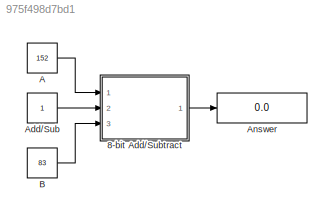
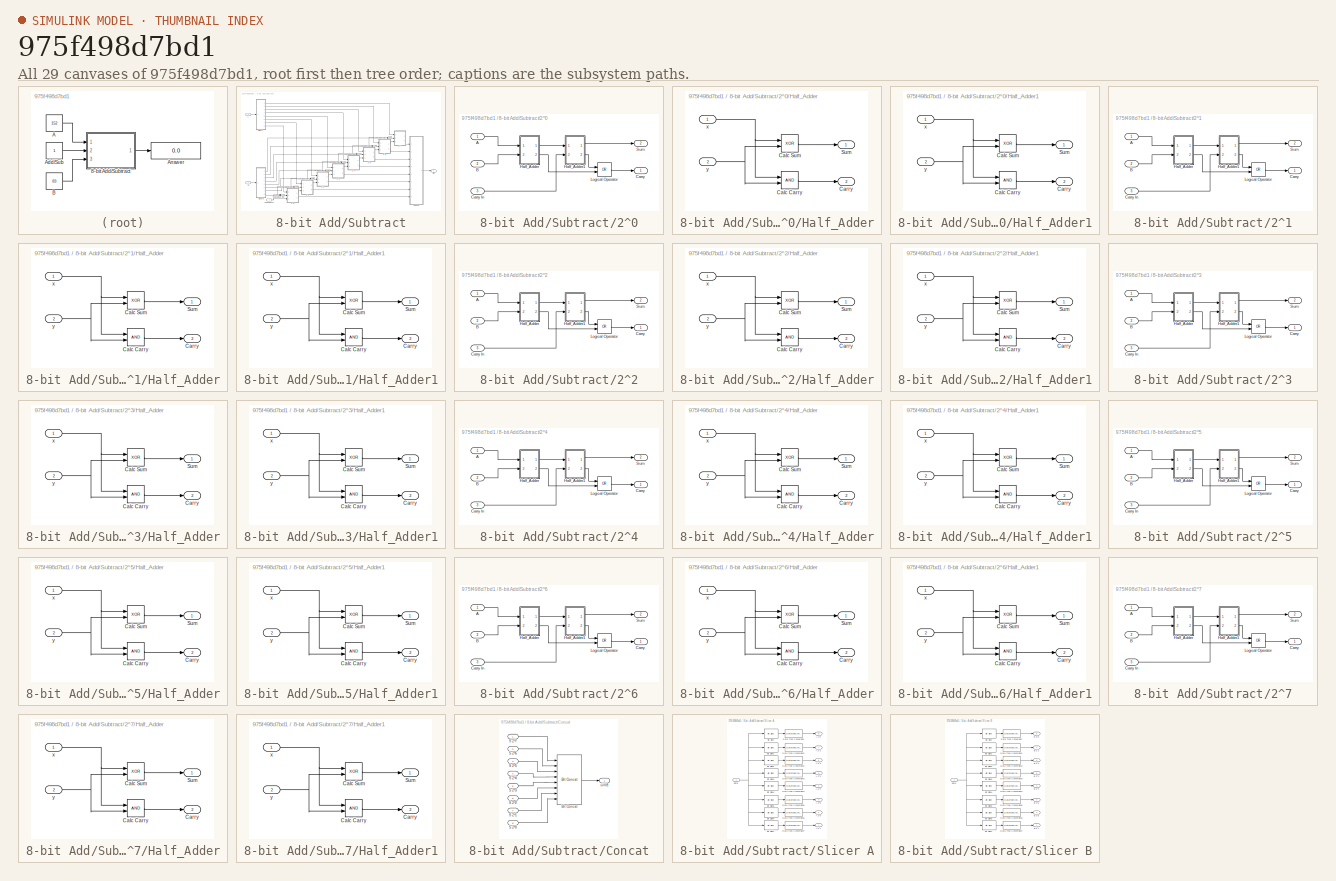
[diagram: thumbnail index - all 29 canvases of the model, root first then tree order]
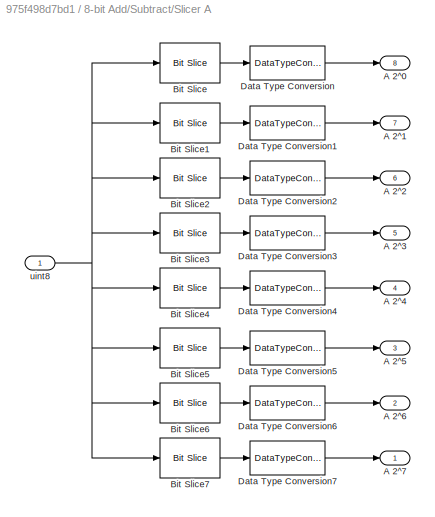
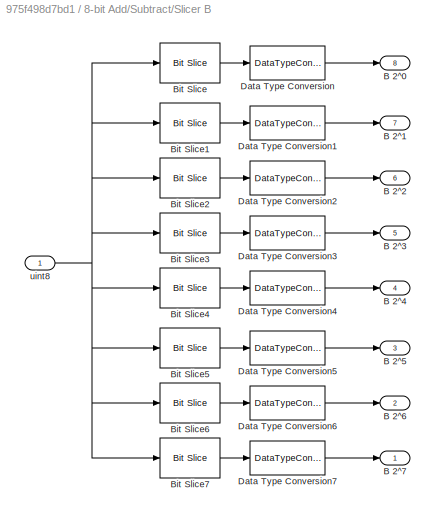
MODEL slx_975f498d7bd1
KIND model
CONFIG AbsTol = auto
CONFIG EnableMultiTasking = off
CONFIG FixedStep = 1
CONFIG MaxStep = auto
CONFIG MinStep = auto
CONFIG RelTol = 1e-3
CONFIG SampleTimeConstraint = Unconstrained
CONFIG Solver = FixedStepDiscrete
CONFIG SolverName = FixedStepDiscrete
CONFIG StartTime = 0.0
CONFIG StopTime = 10.0
BLOCK [SubSystem] 8-bit Add//Subtract
  Ports = [3, 1]
  RequestExecContextInheritance = off
BLOCK [SubSystem] 8-bit Add//Subtract/2^0
  Ports = [3, 2]
  RequestExecContextInheritance = off
BLOCK [Inport] 8-bit Add//Subtract/2^0/A
  IconDisplay = Port number
BLOCK [Inport] 8-bit Add//Subtract/2^0/B
  IconDisplay = Port number
  Port = 2
BLOCK [Outport] 8-bit Add//Subtract/2^0/Carry
  IconDisplay = Port number
BLOCK [Inport] 8-bit Add//Subtract/2^0/Carry In
  IconDisplay = Port number
  Port = 3
BLOCK [SubSystem] 8-bit Add//Subtract/2^0/Half_Adder
  Ports = [2, 2]
  RequestExecContextInheritance = off
BLOCK [Logic] 8-bit Add//Subtract/2^0/Half_Adder/Calc Carry
  AllPortsSameDT = off
  OutDataTypeStr = boolean
  Ports = [2, 1]
BLOCK [Logic] 8-bit Add//Subtract/2^0/Half_Adder/Calc Sum
  AllPortsSameDT = off
  Operator = XOR
  OutDataTypeStr = boolean
  Ports = [2, 1]
BLOCK [Outport] 8-bit Add//Subtract/2^0/Half_Adder/Carry
  IconDisplay = Port number
  Port = 2
BLOCK [Outport] 8-bit Add//Subtract/2^0/Half_Adder/Sum
  IconDisplay = Port number
BLOCK [Inport] 8-bit Add//Subtract/2^0/Half_Adder/x
  IconDisplay = Port number
BLOCK [Inport] 8-bit Add//Subtract/2^0/Half_Adder/y
  IconDisplay = Port number
  Port = 2
BLOCK [SubSystem] 8-bit Add//Subtract/2^0/Half_Adder1
  Ports = [2, 2]
  RequestExecContextInheritance = off
BLOCK [Logic] 8-bit Add//Subtract/2^0/Half_Adder1/Calc Carry
  AllPortsSameDT = off
  OutDataTypeStr = boolean
  Ports = [2, 1]
BLOCK [Logic] 8-bit Add//Subtract/2^0/Half_Adder1/Calc Sum
  AllPortsSameDT = off
  Operator = XOR
  OutDataTypeStr = boolean
  Ports = [2, 1]
BLOCK [Outport] 8-bit Add//Subtract/2^0/Half_Adder1/Carry
  IconDisplay = Port number
  Port = 2
BLOCK [Outport] 8-bit Add//Subtract/2^0/Half_Adder1/Sum
  IconDisplay = Port number
BLOCK [Inport] 8-bit Add//Subtract/2^0/Half_Adder1/x
  IconDisplay = Port number
BLOCK [Inport] 8-bit Add//Subtract/2^0/Half_Adder1/y
  IconDisplay = Port number
  Port = 2
BLOCK [Logic] 8-bit Add//Subtract/2^0/Logical Operator
  AllPortsSameDT = off
  Operator = OR
  OutDataTypeStr = boolean
  Ports = [2, 1]
BLOCK [Outport] 8-bit Add//Subtract/2^0/Sum
  IconDisplay = Port number
  Port = 2
BLOCK [SubSystem] 8-bit Add//Subtract/2^1
  Ports = [3, 2]
  RequestExecContextInheritance = off
BLOCK [Inport] 8-bit Add//Subtract/2^1/A
  IconDisplay = Port number
BLOCK [Inport] 8-bit Add//Subtract/2^1/B
  IconDisplay = Port number
  Port = 2
BLOCK [Outport] 8-bit Add//Subtract/2^1/Carry
  IconDisplay = Port number
BLOCK [Inport] 8-bit Add//Subtract/2^1/Carry In
  IconDisplay = Port number
  Port = 3
BLOCK [SubSystem] 8-bit Add//Subtract/2^1/Half_Adder
  Ports = [2, 2]
  RequestExecContextInheritance = off
BLOCK [Logic] 8-bit Add//Subtract/2^1/Half_Adder/Calc Carry
  AllPortsSameDT = off
  OutDataTypeStr = boolean
  Ports = [2, 1]
BLOCK [Logic] 8-bit Add//Subtract/2^1/Half_Adder/Calc Sum
  AllPortsSameDT = off
  Operator = XOR
  OutDataTypeStr = boolean
  Ports = [2, 1]
BLOCK [Outport] 8-bit Add//Subtract/2^1/Half_Adder/Carry
  IconDisplay = Port number
  Port = 2
BLOCK [Outport] 8-bit Add//Subtract/2^1/Half_Adder/Sum
  IconDisplay = Port number
BLOCK [Inport] 8-bit Add//Subtract/2^1/Half_Adder/x
  IconDisplay = Port number
BLOCK [Inport] 8-bit Add//Subtract/2^1/Half_Adder/y
  IconDisplay = Port number
  Port = 2
BLOCK [SubSystem] 8-bit Add//Subtract/2^1/Half_Adder1
  Ports = [2, 2]
  RequestExecContextInheritance = off
BLOCK [Logic] 8-bit Add//Subtract/2^1/Half_Adder1/Calc Carry
  AllPortsSameDT = off
  OutDataTypeStr = boolean
  Ports = [2, 1]
BLOCK [Logic] 8-bit Add//Subtract/2^1/Half_Adder1/Calc Sum
  AllPortsSameDT = off
  Operator = XOR
  OutDataTypeStr = boolean
  Ports = [2, 1]
BLOCK [Outport] 8-bit Add//Subtract/2^1/Half_Adder1/Carry
  IconDisplay = Port number
  Port = 2
BLOCK [Outport] 8-bit Add//Subtract/2^1/Half_Adder1/Sum
  IconDisplay = Port number
BLOCK [Inport] 8-bit Add//Subtract/2^1/Half_Adder1/x
  IconDisplay = Port number
BLOCK [Inport] 8-bit Add//Subtract/2^1/Half_Adder1/y
  IconDisplay = Port number
  Port = 2
BLOCK [Logic] 8-bit Add//Subtract/2^1/Logical Operator
  AllPortsSameDT = off
  Operator = OR
  OutDataTypeStr = boolean
  Ports = [2, 1]
BLOCK [Outport] 8-bit Add//Subtract/2^1/Sum
  IconDisplay = Port number
  Port = 2
BLOCK [SubSystem] 8-bit Add//Subtract/2^2
  Ports = [3, 2]
  RequestExecContextInheritance = off
BLOCK [Inport] 8-bit Add//Subtract/2^2/A
  IconDisplay = Port number
BLOCK [Inport] 8-bit Add//Subtract/2^2/B
  IconDisplay = Port number
  Port = 2
BLOCK [Outport] 8-bit Add//Subtract/2^2/Carry
  IconDisplay = Port number
BLOCK [Inport] 8-bit Add//Subtract/2^2/Carry In
  IconDisplay = Port number
  Port = 3
BLOCK [SubSystem] 8-bit Add//Subtract/2^2/Half_Adder
  Ports = [2, 2]
  RequestExecContextInheritance = off
BLOCK [Logic] 8-bit Add//Subtract/2^2/Half_Adder/Calc Carry
  AllPortsSameDT = off
  OutDataTypeStr = boolean
  Ports = [2, 1]
BLOCK [Logic] 8-bit Add//Subtract/2^2/Half_Adder/Calc Sum
  AllPortsSameDT = off
  Operator = XOR
  OutDataTypeStr = boolean
  Ports = [2, 1]
BLOCK [Outport] 8-bit Add//Subtract/2^2/Half_Adder/Carry
  IconDisplay = Port number
  Port = 2
BLOCK [Outport] 8-bit Add//Subtract/2^2/Half_Adder/Sum
  IconDisplay = Port number
BLOCK [Inport] 8-bit Add//Subtract/2^2/Half_Adder/x
  IconDisplay = Port number
BLOCK [Inport] 8-bit Add//Subtract/2^2/Half_Adder/y
  IconDisplay = Port number
  Port = 2
BLOCK [SubSystem] 8-bit Add//Subtract/2^2/Half_Adder1
  Ports = [2, 2]
  RequestExecContextInheritance = off
BLOCK [Logic] 8-bit Add//Subtract/2^2/Half_Adder1/Calc Carry
  AllPortsSameDT = off
  OutDataTypeStr = boolean
  Ports = [2, 1]
BLOCK [Logic] 8-bit Add//Subtract/2^2/Half_Adder1/Calc Sum
  AllPortsSameDT = off
  Operator = XOR
  OutDataTypeStr = boolean
  Ports = [2, 1]
BLOCK [Outport] 8-bit Add//Subtract/2^2/Half_Adder1/Carry
  IconDisplay = Port number
  Port = 2
BLOCK [Outport] 8-bit Add//Subtract/2^2/Half_Adder1/Sum
  IconDisplay = Port number
BLOCK [Inport] 8-bit Add//Subtract/2^2/Half_Adder1/x
  IconDisplay = Port number
BLOCK [Inport] 8-bit Add//Subtract/2^2/Half_Adder1/y
  IconDisplay = Port number
  Port = 2
BLOCK [Logic] 8-bit Add//Subtract/2^2/Logical Operator
  AllPortsSameDT = off
  Operator = OR
  OutDataTypeStr = boolean
  Ports = [2, 1]
BLOCK [Outport] 8-bit Add//Subtract/2^2/Sum
  IconDisplay = Port number
  Port = 2
BLOCK [SubSystem] 8-bit Add//Subtract/2^3
  Ports = [3, 2]
  RequestExecContextInheritance = off
BLOCK [Inport] 8-bit Add//Subtract/2^3/A
  IconDisplay = Port number
BLOCK [Inport] 8-bit Add//Subtract/2^3/B
  IconDisplay = Port number
  Port = 2
BLOCK [Outport] 8-bit Add//Subtract/2^3/Carry
  IconDisplay = Port number
BLOCK [Inport] 8-bit Add//Subtract/2^3/Carry In
  IconDisplay = Port number
  Port = 3
BLOCK [SubSystem] 8-bit Add//Subtract/2^3/Half_Adder
  Ports = [2, 2]
  RequestExecContextInheritance = off
BLOCK [Logic] 8-bit Add//Subtract/2^3/Half_Adder/Calc Carry
  AllPortsSameDT = off
  OutDataTypeStr = boolean
  Ports = [2, 1]
BLOCK [Logic] 8-bit Add//Subtract/2^3/Half_Adder/Calc Sum
  AllPortsSameDT = off
  Operator = XOR
  OutDataTypeStr = boolean
  Ports = [2, 1]
BLOCK [Outport] 8-bit Add//Subtract/2^3/Half_Adder/Carry
  IconDisplay = Port number
  Port = 2
BLOCK [Outport] 8-bit Add//Subtract/2^3/Half_Adder/Sum
  IconDisplay = Port number
BLOCK [Inport] 8-bit Add//Subtract/2^3/Half_Adder/x
  IconDisplay = Port number
BLOCK [Inport] 8-bit Add//Subtract/2^3/Half_Adder/y
  IconDisplay = Port number
  Port = 2
BLOCK [SubSystem] 8-bit Add//Subtract/2^3/Half_Adder1
  Ports = [2, 2]
  RequestExecContextInheritance = off
BLOCK [Logic] 8-bit Add//Subtract/2^3/Half_Adder1/Calc Carry
  AllPortsSameDT = off
  OutDataTypeStr = boolean
  Ports = [2, 1]
BLOCK [Logic] 8-bit Add//Subtract/2^3/Half_Adder1/Calc Sum
  AllPortsSameDT = off
  Operator = XOR
  OutDataTypeStr = boolean
  Ports = [2, 1]
BLOCK [Outport] 8-bit Add//Subtract/2^3/Half_Adder1/Carry
  IconDisplay = Port number
  Port = 2
BLOCK [Outport] 8-bit Add//Subtract/2^3/Half_Adder1/Sum
  IconDisplay = Port number
BLOCK [Inport] 8-bit Add//Subtract/2^3/Half_Adder1/x
  IconDisplay = Port number
BLOCK [Inport] 8-bit Add//Subtract/2^3/Half_Adder1/y
  IconDisplay = Port number
  Port = 2
BLOCK [Logic] 8-bit Add//Subtract/2^3/Logical Operator
  AllPortsSameDT = off
  Operator = OR
  OutDataTypeStr = boolean
  Ports = [2, 1]
BLOCK [Outport] 8-bit Add//Subtract/2^3/Sum
  IconDisplay = Port number
  Port = 2
BLOCK [SubSystem] 8-bit Add//Subtract/2^4
  Ports = [3, 2]
  RequestExecContextInheritance = off
BLOCK [Inport] 8-bit Add//Subtract/2^4/A
  IconDisplay = Port number
BLOCK [Inport] 8-bit Add//Subtract/2^4/B
  IconDisplay = Port number
  Port = 2
BLOCK [Outport] 8-bit Add//Subtract/2^4/Carry
  IconDisplay = Port number
BLOCK [Inport] 8-bit Add//Subtract/2^4/Carry In
  IconDisplay = Port number
  Port = 3
BLOCK [SubSystem] 8-bit Add//Subtract/2^4/Half_Adder
  Ports = [2, 2]
  RequestExecContextInheritance = off
BLOCK [Logic] 8-bit Add//Subtract/2^4/Half_Adder/Calc Carry
  AllPortsSameDT = off
  OutDataTypeStr = boolean
  Ports = [2, 1]
BLOCK [Logic] 8-bit Add//Subtract/2^4/Half_Adder/Calc Sum
  AllPortsSameDT = off
  Operator = XOR
  OutDataTypeStr = boolean
  Ports = [2, 1]
BLOCK [Outport] 8-bit Add//Subtract/2^4/Half_Adder/Carry
  IconDisplay = Port number
  Port = 2
BLOCK [Outport] 8-bit Add//Subtract/2^4/Half_Adder/Sum
  IconDisplay = Port number
BLOCK [Inport] 8-bit Add//Subtract/2^4/Half_Adder/x
  IconDisplay = Port number
BLOCK [Inport] 8-bit Add//Subtract/2^4/Half_Adder/y
  IconDisplay = Port number
  Port = 2
BLOCK [SubSystem] 8-bit Add//Subtract/2^4/Half_Adder1
  Ports = [2, 2]
  RequestExecContextInheritance = off
BLOCK [Logic] 8-bit Add//Subtract/2^4/Half_Adder1/Calc Carry
  AllPortsSameDT = off
  OutDataTypeStr = boolean
  Ports = [2, 1]
BLOCK [Logic] 8-bit Add//Subtract/2^4/Half_Adder1/Calc Sum
  AllPortsSameDT = off
  Operator = XOR
  OutDataTypeStr = boolean
  Ports = [2, 1]
BLOCK [Outport] 8-bit Add//Subtract/2^4/Half_Adder1/Carry
  IconDisplay = Port number
  Port = 2
BLOCK [Outport] 8-bit Add//Subtract/2^4/Half_Adder1/Sum
  IconDisplay = Port number
BLOCK [Inport] 8-bit Add//Subtract/2^4/Half_Adder1/x
  IconDisplay = Port number
BLOCK [Inport] 8-bit Add//Subtract/2^4/Half_Adder1/y
  IconDisplay = Port number
  Port = 2
BLOCK [Logic] 8-bit Add//Subtract/2^4/Logical Operator
  AllPortsSameDT = off
  Operator = OR
  OutDataTypeStr = boolean
  Ports = [2, 1]
BLOCK [Outport] 8-bit Add//Subtract/2^4/Sum
  IconDisplay = Port number
  Port = 2
BLOCK [SubSystem] 8-bit Add//Subtract/2^5
  Ports = [3, 2]
  RequestExecContextInheritance = off
BLOCK [Inport] 8-bit Add//Subtract/2^5/A
  IconDisplay = Port number
BLOCK [Inport] 8-bit Add//Subtract/2^5/B
  IconDisplay = Port number
  Port = 2
BLOCK [Outport] 8-bit Add//Subtract/2^5/Carry
  IconDisplay = Port number
BLOCK [Inport] 8-bit Add//Subtract/2^5/Carry In
  IconDisplay = Port number
  Port = 3
BLOCK [SubSystem] 8-bit Add//Subtract/2^5/Half_Adder
  Ports = [2, 2]
  RequestExecContextInheritance = off
BLOCK [Logic] 8-bit Add//Subtract/2^5/Half_Adder/Calc Carry
  AllPortsSameDT = off
  OutDataTypeStr = boolean
  Ports = [2, 1]
BLOCK [Logic] 8-bit Add//Subtract/2^5/Half_Adder/Calc Sum
  AllPortsSameDT = off
  Operator = XOR
  OutDataTypeStr = boolean
  Ports = [2, 1]
BLOCK [Outport] 8-bit Add//Subtract/2^5/Half_Adder/Carry
  IconDisplay = Port number
  Port = 2
BLOCK [Outport] 8-bit Add//Subtract/2^5/Half_Adder/Sum
  IconDisplay = Port number
BLOCK [Inport] 8-bit Add//Subtract/2^5/Half_Adder/x
  IconDisplay = Port number
BLOCK [Inport] 8-bit Add//Subtract/2^5/Half_Adder/y
  IconDisplay = Port number
  Port = 2
BLOCK [SubSystem] 8-bit Add//Subtract/2^5/Half_Adder1
  Ports = [2, 2]
  RequestExecContextInheritance = off
BLOCK [Logic] 8-bit Add//Subtract/2^5/Half_Adder1/Calc Carry
  AllPortsSameDT = off
  OutDataTypeStr = boolean
  Ports = [2, 1]
BLOCK [Logic] 8-bit Add//Subtract/2^5/Half_Adder1/Calc Sum
  AllPortsSameDT = off
  Operator = XOR
  OutDataTypeStr = boolean
  Ports = [2, 1]
BLOCK [Outport] 8-bit Add//Subtract/2^5/Half_Adder1/Carry
  IconDisplay = Port number
  Port = 2
BLOCK [Outport] 8-bit Add//Subtract/2^5/Half_Adder1/Sum
  IconDisplay = Port number
BLOCK [Inport] 8-bit Add//Subtract/2^5/Half_Adder1/x
  IconDisplay = Port number
BLOCK [Inport] 8-bit Add//Subtract/2^5/Half_Adder1/y
  IconDisplay = Port number
  Port = 2
BLOCK [Logic] 8-bit Add//Subtract/2^5/Logical Operator
  AllPortsSameDT = off
  Operator = OR
  OutDataTypeStr = boolean
  Ports = [2, 1]
BLOCK [Outport] 8-bit Add//Subtract/2^5/Sum
  IconDisplay = Port number
  Port = 2
BLOCK [SubSystem] 8-bit Add//Subtract/2^6
  Ports = [3, 2]
  RequestExecContextInheritance = off
BLOCK [Inport] 8-bit Add//Subtract/2^6/A
  IconDisplay = Port number
BLOCK [Inport] 8-bit Add//Subtract/2^6/B
  IconDisplay = Port number
  Port = 2
BLOCK [Outport] 8-bit Add//Subtract/2^6/Carry
  IconDisplay = Port number
BLOCK [Inport] 8-bit Add//Subtract/2^6/Carry In
  IconDisplay = Port number
  Port = 3
BLOCK [SubSystem] 8-bit Add//Subtract/2^6/Half_Adder
  Ports = [2, 2]
  RequestExecContextInheritance = off
BLOCK [Logic] 8-bit Add//Subtract/2^6/Half_Adder/Calc Carry
  AllPortsSameDT = off
  OutDataTypeStr = boolean
  Ports = [2, 1]
BLOCK [Logic] 8-bit Add//Subtract/2^6/Half_Adder/Calc Sum
  AllPortsSameDT = off
  Operator = XOR
  OutDataTypeStr = boolean
  Ports = [2, 1]
BLOCK [Outport] 8-bit Add//Subtract/2^6/Half_Adder/Carry
  IconDisplay = Port number
  Port = 2
BLOCK [Outport] 8-bit Add//Subtract/2^6/Half_Adder/Sum
  IconDisplay = Port number
BLOCK [Inport] 8-bit Add//Subtract/2^6/Half_Adder/x
  IconDisplay = Port number
BLOCK [Inport] 8-bit Add//Subtract/2^6/Half_Adder/y
  IconDisplay = Port number
  Port = 2
BLOCK [SubSystem] 8-bit Add//Subtract/2^6/Half_Adder1
  Ports = [2, 2]
  RequestExecContextInheritance = off
BLOCK [Logic] 8-bit Add//Subtract/2^6/Half_Adder1/Calc Carry
  AllPortsSameDT = off
  OutDataTypeStr = boolean
  Ports = [2, 1]
BLOCK [Logic] 8-bit Add//Subtract/2^6/Half_Adder1/Calc Sum
  AllPortsSameDT = off
  Operator = XOR
  OutDataTypeStr = boolean
  Ports = [2, 1]
BLOCK [Outport] 8-bit Add//Subtract/2^6/Half_Adder1/Carry
  IconDisplay = Port number
  Port = 2
BLOCK [Outport] 8-bit Add//Subtract/2^6/Half_Adder1/Sum
  IconDisplay = Port number
BLOCK [Inport] 8-bit Add//Subtract/2^6/Half_Adder1/x
  IconDisplay = Port number
BLOCK [Inport] 8-bit Add//Subtract/2^6/Half_Adder1/y
  IconDisplay = Port number
  Port = 2
BLOCK [Logic] 8-bit Add//Subtract/2^6/Logical Operator
  AllPortsSameDT = off
  Operator = OR
  OutDataTypeStr = boolean
  Ports = [2, 1]
BLOCK [Outport] 8-bit Add//Subtract/2^6/Sum
  IconDisplay = Port number
  Port = 2
BLOCK [SubSystem] 8-bit Add//Subtract/2^7
  Ports = [3, 2]
  RequestExecContextInheritance = off
BLOCK [Inport] 8-bit Add//Subtract/2^7/A
  IconDisplay = Port number
BLOCK [Inport] 8-bit Add//Subtract/2^7/B
  IconDisplay = Port number
  Port = 2
BLOCK [Outport] 8-bit Add//Subtract/2^7/Carry
  IconDisplay = Port number
BLOCK [Inport] 8-bit Add//Subtract/2^7/Carry In
  IconDisplay = Port number
  Port = 3
BLOCK [SubSystem] 8-bit Add//Subtract/2^7/Half_Adder
  Ports = [2, 2]
  RequestExecContextInheritance = off
BLOCK [Logic] 8-bit Add//Subtract/2^7/Half_Adder/Calc Carry
  AllPortsSameDT = off
  OutDataTypeStr = boolean
  Ports = [2, 1]
BLOCK [Logic] 8-bit Add//Subtract/2^7/Half_Adder/Calc Sum
  AllPortsSameDT = off
  Operator = XOR
  OutDataTypeStr = boolean
  Ports = [2, 1]
BLOCK [Outport] 8-bit Add//Subtract/2^7/Half_Adder/Carry
  IconDisplay = Port number
  Port = 2
BLOCK [Outport] 8-bit Add//Subtract/2^7/Half_Adder/Sum
  IconDisplay = Port number
BLOCK [Inport] 8-bit Add//Subtract/2^7/Half_Adder/x
  IconDisplay = Port number
BLOCK [Inport] 8-bit Add//Subtract/2^7/Half_Adder/y
  IconDisplay = Port number
  Port = 2
BLOCK [SubSystem] 8-bit Add//Subtract/2^7/Half_Adder1
  Ports = [2, 2]
  RequestExecContextInheritance = off
BLOCK [Logic] 8-bit Add//Subtract/2^7/Half_Adder1/Calc Carry
  AllPortsSameDT = off
  OutDataTypeStr = boolean
  Ports = [2, 1]
BLOCK [Logic] 8-bit Add//Subtract/2^7/Half_Adder1/Calc Sum
  AllPortsSameDT = off
  Operator = XOR
  OutDataTypeStr = boolean
  Ports = [2, 1]
BLOCK [Outport] 8-bit Add//Subtract/2^7/Half_Adder1/Carry
  IconDisplay = Port number
  Port = 2
BLOCK [Outport] 8-bit Add//Subtract/2^7/Half_Adder1/Sum
  IconDisplay = Port number
BLOCK [Inport] 8-bit Add//Subtract/2^7/Half_Adder1/x
  IconDisplay = Port number
BLOCK [Inport] 8-bit Add//Subtract/2^7/Half_Adder1/y
  IconDisplay = Port number
  Port = 2
BLOCK [Logic] 8-bit Add//Subtract/2^7/Logical Operator
  AllPortsSameDT = off
  Operator = OR
  OutDataTypeStr = boolean
  Ports = [2, 1]
BLOCK [Outport] 8-bit Add//Subtract/2^7/Sum
  IconDisplay = Port number
  Port = 2
BLOCK [Inport] 8-bit Add//Subtract/A
  IconDisplay = Port number
  OutDataTypeStr = uint8
BLOCK [Inport] 8-bit Add//Subtract/Add//Subtract
  IconDisplay = Port number
  OutDataTypeStr = boolean
  Port = 2
BLOCK [Inport] 8-bit Add//Subtract/B
  IconDisplay = Port number
  OutDataTypeStr = uint8
  Port = 3
BLOCK [SubSystem] 8-bit Add//Subtract/Concat
  Ports = [8, 1]
  RequestExecContextInheritance = off
BLOCK [Reference] 8-bit Add//Subtract/Concat/Bit Concat  REF=hdlsllib/Logic and Bit
Operations/Bit Concat
  Ports = [8, 1]
  SourceBlock = hdlsllib/Logic and Bit\nOperations/Bit Concat
  SourceProductBaseCode = HD
  SourceProductName = HDL Coder
  SourceType = Bit Concat
BLOCK [Inport] 8-bit Add//Subtract/Concat/S 2^0
  IconDisplay = Port number
  Port = 8
BLOCK [Inport] 8-bit Add//Subtract/Concat/S 2^1
  IconDisplay = Port number
  Port = 7
BLOCK [Inport] 8-bit Add//Subtract/Concat/S 2^2
  IconDisplay = Port number
  Port = 6
BLOCK [Inport] 8-bit Add//Subtract/Concat/S 2^3
  IconDisplay = Port number
  Port = 5
BLOCK [Inport] 8-bit Add//Subtract/Concat/S 2^4
  IconDisplay = Port number
  Port = 4
BLOCK [Inport] 8-bit Add//Subtract/Concat/S 2^5
  IconDisplay = Port number
  Port = 3
BLOCK [Inport] 8-bit Add//Subtract/Concat/S 2^6
  IconDisplay = Port number
  Port = 2
BLOCK [Inport] 8-bit Add//Subtract/Concat/S 2^7
  IconDisplay = Port number
BLOCK [Outport] 8-bit Add//Subtract/Concat/uint8
  IconDisplay = Port number
BLOCK [Outport] 8-bit Add//Subtract/Diff
  IconDisplay = Port number
BLOCK [Logic] 8-bit Add//Subtract/Logical Operator
  AllPortsSameDT = off
  Operator = XOR
  OutDataTypeStr = boolean
  Ports = [2, 1]
BLOCK [Logic] 8-bit Add//Subtract/Logical Operator1
  AllPortsSameDT = off
  Operator = XOR
  OutDataTypeStr = boolean
  Ports = [2, 1]
BLOCK [Logic] 8-bit Add//Subtract/Logical Operator2
  AllPortsSameDT = off
  Operator = XOR
  OutDataTypeStr = boolean
  Ports = [2, 1]
BLOCK [Logic] 8-bit Add//Subtract/Logical Operator3
  AllPortsSameDT = off
  Operator = XOR
  OutDataTypeStr = boolean
  Ports = [2, 1]
BLOCK [Logic] 8-bit Add//Subtract/Logical Operator4
  AllPortsSameDT = off
  Operator = XOR
  OutDataTypeStr = boolean
  Ports = [2, 1]
BLOCK [Logic] 8-bit Add//Subtract/Logical Operator5
  AllPortsSameDT = off
  Operator = XOR
  OutDataTypeStr = boolean
  Ports = [2, 1]
BLOCK [Logic] 8-bit Add//Subtract/Logical Operator6
  AllPortsSameDT = off
  Operator = XOR
  OutDataTypeStr = boolean
  Ports = [2, 1]
BLOCK [Logic] 8-bit Add//Subtract/Logical Operator7
  AllPortsSameDT = off
  Operator = XOR
  OutDataTypeStr = boolean
  Ports = [2, 1]
BLOCK [SubSystem] 8-bit Add//Subtract/Slicer A
  Ports = [1, 8]
  RequestExecContextInheritance = off
BLOCK [Outport] 8-bit Add//Subtract/Slicer A/A 2^0 
  IconDisplay = Port number
  Port = 8
BLOCK [Outport] 8-bit Add//Subtract/Slicer A/A 2^1
  IconDisplay = Port number
  Port = 7
BLOCK [Outport] 8-bit Add//Subtract/Slicer A/A 2^2
  IconDisplay = Port number
  Port = 6
BLOCK [Outport] 8-bit Add//Subtract/Slicer A/A 2^3
  IconDisplay = Port number
  Port = 5
BLOCK [Outport] 8-bit Add//Subtract/Slicer A/A 2^4
  IconDisplay = Port number
  Port = 4
BLOCK [Outport] 8-bit Add//Subtract/Slicer A/A 2^5
  IconDisplay = Port number
  Port = 3
BLOCK [Outport] 8-bit Add//Subtract/Slicer A/A 2^6
  IconDisplay = Port number
  Port = 2
BLOCK [Outport] 8-bit Add//Subtract/Slicer A/A 2^7
  IconDisplay = Port number
BLOCK [Reference] 8-bit Add//Subtract/Slicer A/Bit Slice  REF=hdlsllib/Logic and Bit
Operations/Bit Slice
  Ports = [1, 1]
  SourceBlock = hdlsllib/Logic and Bit\nOperations/Bit Slice
  SourceProductBaseCode = HD
  SourceProductName = HDL Coder
  SourceType = Bit Slice
BLOCK [Reference] 8-bit Add//Subtract/Slicer A/Bit Slice1  REF=hdlsllib/Logic and Bit
Operations/Bit Slice
  Ports = [1, 1]
  SourceBlock = hdlsllib/Logic and Bit\nOperations/Bit Slice
  SourceProductBaseCode = HD
  SourceProductName = HDL Coder
  SourceType = Bit Slice
BLOCK [Reference] 8-bit Add//Subtract/Slicer A/Bit Slice2  REF=hdlsllib/Logic and Bit
Operations/Bit Slice
  Ports = [1, 1]
  SourceBlock = hdlsllib/Logic and Bit\nOperations/Bit Slice
  SourceProductBaseCode = HD
  SourceProductName = HDL Coder
  SourceType = Bit Slice
BLOCK [Reference] 8-bit Add//Subtract/Slicer A/Bit Slice3  REF=hdlsllib/Logic and Bit
Operations/Bit Slice
  Ports = [1, 1]
  SourceBlock = hdlsllib/Logic and Bit\nOperations/Bit Slice
  SourceProductBaseCode = HD
  SourceProductName = HDL Coder
  SourceType = Bit Slice
BLOCK [Reference] 8-bit Add//Subtract/Slicer A/Bit Slice4  REF=hdlsllib/Logic and Bit
Operations/Bit Slice
  Ports = [1, 1]
  SourceBlock = hdlsllib/Logic and Bit\nOperations/Bit Slice
  SourceProductBaseCode = HD
  SourceProductName = HDL Coder
  SourceType = Bit Slice
BLOCK [Reference] 8-bit Add//Subtract/Slicer A/Bit Slice5  REF=hdlsllib/Logic and Bit
Operations/Bit Slice
  Ports = [1, 1]
  SourceBlock = hdlsllib/Logic and Bit\nOperations/Bit Slice
  SourceProductBaseCode = HD
  SourceProductName = HDL Coder
  SourceType = Bit Slice
BLOCK [Reference] 8-bit Add//Subtract/Slicer A/Bit Slice6  REF=hdlsllib/Logic and Bit
Operations/Bit Slice
  Ports = [1, 1]
  SourceBlock = hdlsllib/Logic and Bit\nOperations/Bit Slice
  SourceProductBaseCode = HD
  SourceProductName = HDL Coder
  SourceType = Bit Slice
BLOCK [Reference] 8-bit Add//Subtract/Slicer A/Bit Slice7  REF=hdlsllib/Logic and Bit
Operations/Bit Slice
  Ports = [1, 1]
  SourceBlock = hdlsllib/Logic and Bit\nOperations/Bit Slice
  SourceProductBaseCode = HD
  SourceProductName = HDL Coder
  SourceType = Bit Slice
BLOCK [DataTypeConversion] 8-bit Add//Subtract/Slicer A/Data Type Conversion
  OutDataTypeStr = boolean
  RndMeth = Floor
  SaturateOnIntegerOverflow = off
BLOCK [DataTypeConversion] 8-bit Add//Subtract/Slicer A/Data Type Conversion1
  OutDataTypeStr = boolean
  RndMeth = Floor
  SaturateOnIntegerOverflow = off
BLOCK [DataTypeConversion] 8-bit Add//Subtract/Slicer A/Data Type Conversion2
  OutDataTypeStr = boolean
  RndMeth = Floor
  SaturateOnIntegerOverflow = off
BLOCK [DataTypeConversion] 8-bit Add//Subtract/Slicer A/Data Type Conversion3
  OutDataTypeStr = boolean
  RndMeth = Floor
  SaturateOnIntegerOverflow = off
BLOCK [DataTypeConversion] 8-bit Add//Subtract/Slicer A/Data Type Conversion4
  OutDataTypeStr = boolean
  RndMeth = Floor
  SaturateOnIntegerOverflow = off
BLOCK [DataTypeConversion] 8-bit Add//Subtract/Slicer A/Data Type Conversion5
  OutDataTypeStr = boolean
  RndMeth = Floor
  SaturateOnIntegerOverflow = off
BLOCK [DataTypeConversion] 8-bit Add//Subtract/Slicer A/Data Type Conversion6
  OutDataTypeStr = boolean
  RndMeth = Floor
  SaturateOnIntegerOverflow = off
BLOCK [DataTypeConversion] 8-bit Add//Subtract/Slicer A/Data Type Conversion7
  OutDataTypeStr = boolean
  RndMeth = Floor
  SaturateOnIntegerOverflow = off
BLOCK [Inport] 8-bit Add//Subtract/Slicer A/uint8
  IconDisplay = Port number
  OutDataTypeStr = uint8
  SampleTime = 1
BLOCK [SubSystem] 8-bit Add//Subtract/Slicer B
  Ports = [1, 8]
  RequestExecContextInheritance = off
BLOCK [Outport] 8-bit Add//Subtract/Slicer B/B 2^0 
  IconDisplay = Port number
  Port = 8
BLOCK [Outport] 8-bit Add//Subtract/Slicer B/B 2^1
  IconDisplay = Port number
  Port = 7
BLOCK [Outport] 8-bit Add//Subtract/Slicer B/B 2^2
  IconDisplay = Port number
  Port = 6
BLOCK [Outport] 8-bit Add//Subtract/Slicer B/B 2^3
  IconDisplay = Port number
  Port = 5
BLOCK [Outport] 8-bit Add//Subtract/Slicer B/B 2^4
  IconDisplay = Port number
  Port = 4
BLOCK [Outport] 8-bit Add//Subtract/Slicer B/B 2^5
  IconDisplay = Port number
  Port = 3
BLOCK [Outport] 8-bit Add//Subtract/Slicer B/B 2^6
  IconDisplay = Port number
  Port = 2
BLOCK [Outport] 8-bit Add//Subtract/Slicer B/B 2^7
  IconDisplay = Port number
BLOCK [Reference] 8-bit Add//Subtract/Slicer B/Bit Slice  REF=hdlsllib/Logic and Bit
Operations/Bit Slice
  Ports = [1, 1]
  SourceBlock = hdlsllib/Logic and Bit\nOperations/Bit Slice
  SourceProductBaseCode = HD
  SourceProductName = HDL Coder
  SourceType = Bit Slice
BLOCK [Reference] 8-bit Add//Subtract/Slicer B/Bit Slice1  REF=hdlsllib/Logic and Bit
Operations/Bit Slice
  Ports = [1, 1]
  SourceBlock = hdlsllib/Logic and Bit\nOperations/Bit Slice
  SourceProductBaseCode = HD
  SourceProductName = HDL Coder
  SourceType = Bit Slice
BLOCK [Reference] 8-bit Add//Subtract/Slicer B/Bit Slice2  REF=hdlsllib/Logic and Bit
Operations/Bit Slice
  Ports = [1, 1]
  SourceBlock = hdlsllib/Logic and Bit\nOperations/Bit Slice
  SourceProductBaseCode = HD
  SourceProductName = HDL Coder
  SourceType = Bit Slice
BLOCK [Reference] 8-bit Add//Subtract/Slicer B/Bit Slice3  REF=hdlsllib/Logic and Bit
Operations/Bit Slice
  Ports = [1, 1]
  SourceBlock = hdlsllib/Logic and Bit\nOperations/Bit Slice
  SourceProductBaseCode = HD
  SourceProductName = HDL Coder
  SourceType = Bit Slice
BLOCK [Reference] 8-bit Add//Subtract/Slicer B/Bit Slice4  REF=hdlsllib/Logic and Bit
Operations/Bit Slice
  Ports = [1, 1]
  SourceBlock = hdlsllib/Logic and Bit\nOperations/Bit Slice
  SourceProductBaseCode = HD
  SourceProductName = HDL Coder
  SourceType = Bit Slice
BLOCK [Reference] 8-bit Add//Subtract/Slicer B/Bit Slice5  REF=hdlsllib/Logic and Bit
Operations/Bit Slice
  Ports = [1, 1]
  SourceBlock = hdlsllib/Logic and Bit\nOperations/Bit Slice
  SourceProductBaseCode = HD
  SourceProductName = HDL Coder
  SourceType = Bit Slice
BLOCK [Reference] 8-bit Add//Subtract/Slicer B/Bit Slice6  REF=hdlsllib/Logic and Bit
Operations/Bit Slice
  Ports = [1, 1]
  SourceBlock = hdlsllib/Logic and Bit\nOperations/Bit Slice
  SourceProductBaseCode = HD
  SourceProductName = HDL Coder
  SourceType = Bit Slice
BLOCK [Reference] 8-bit Add//Subtract/Slicer B/Bit Slice7  REF=hdlsllib/Logic and Bit
Operations/Bit Slice
  Ports = [1, 1]
  SourceBlock = hdlsllib/Logic and Bit\nOperations/Bit Slice
  SourceProductBaseCode = HD
  SourceProductName = HDL Coder
  SourceType = Bit Slice
BLOCK [DataTypeConversion] 8-bit Add//Subtract/Slicer B/Data Type Conversion
  OutDataTypeStr = boolean
  RndMeth = Floor
  SaturateOnIntegerOverflow = off
BLOCK [DataTypeConversion] 8-bit Add//Subtract/Slicer B/Data Type Conversion1
  OutDataTypeStr = boolean
  RndMeth = Floor
  SaturateOnIntegerOverflow = off
BLOCK [DataTypeConversion] 8-bit Add//Subtract/Slicer B/Data Type Conversion2
  OutDataTypeStr = boolean
  RndMeth = Floor
  SaturateOnIntegerOverflow = off
BLOCK [DataTypeConversion] 8-bit Add//Subtract/Slicer B/Data Type Conversion3
  OutDataTypeStr = boolean
  RndMeth = Floor
  SaturateOnIntegerOverflow = off
BLOCK [DataTypeConversion] 8-bit Add//Subtract/Slicer B/Data Type Conversion4
  OutDataTypeStr = boolean
  RndMeth = Floor
  SaturateOnIntegerOverflow = off
BLOCK [DataTypeConversion] 8-bit Add//Subtract/Slicer B/Data Type Conversion5
  OutDataTypeStr = boolean
  RndMeth = Floor
  SaturateOnIntegerOverflow = off
BLOCK [DataTypeConversion] 8-bit Add//Subtract/Slicer B/Data Type Conversion6
  OutDataTypeStr = boolean
  RndMeth = Floor
  SaturateOnIntegerOverflow = off
BLOCK [DataTypeConversion] 8-bit Add//Subtract/Slicer B/Data Type Conversion7
  OutDataTypeStr = boolean
  RndMeth = Floor
  SaturateOnIntegerOverflow = off
BLOCK [Inport] 8-bit Add//Subtract/Slicer B/uint8
  IconDisplay = Port number
  OutDataTypeStr = uint8
  SampleTime = 1
BLOCK [Constant] A
  OutDataTypeStr = uint8
  SampleTime = 1
  Value = 152
BLOCK [Constant] Add//Sub
  OutDataTypeStr = boolean
  SampleTime = 1
BLOCK [Display] Answer
  Decimation = 1
  Ports = [1]
BLOCK [Constant] B
  OutDataTypeStr = uint8
  SampleTime = 1
  Value = 83
LINE 8-bit Add//Subtract/2^0/A:1 -> 8-bit Add//Subtract/2^0/Half_Adder:1
LINE 8-bit Add//Subtract/2^0/B:1 -> 8-bit Add//Subtract/2^0/Half_Adder:2
LINE 8-bit Add//Subtract/2^0/Carry In:1 -> 8-bit Add//Subtract/2^0/Half_Adder1:2
LINE 8-bit Add//Subtract/2^0/Half_Adder/Calc Carry:1 -> 8-bit Add//Subtract/2^0/Half_Adder/Carry:1
LINE 8-bit Add//Subtract/2^0/Half_Adder/Calc Sum:1 -> 8-bit Add//Subtract/2^0/Half_Adder/Sum:1
NET 8-bit Add//Subtract/2^0/Half_Adder/x:1 -> 8-bit Add//Subtract/2^0/Half_Adder/Calc Carry:1, 8-bit Add//Subtract/2^0/Half_Adder/Calc Sum:1
NET 8-bit Add//Subtract/2^0/Half_Adder/y:1 -> 8-bit Add//Subtract/2^0/Half_Adder/Calc Carry:2, 8-bit Add//Subtract/2^0/Half_Adder/Calc Sum:2
LINE 8-bit Add//Subtract/2^0/Half_Adder1/Calc Carry:1 -> 8-bit Add//Subtract/2^0/Half_Adder1/Carry:1
LINE 8-bit Add//Subtract/2^0/Half_Adder1/Calc Sum:1 -> 8-bit Add//Subtract/2^0/Half_Adder1/Sum:1
NET 8-bit Add//Subtract/2^0/Half_Adder1/x:1 -> 8-bit Add//Subtract/2^0/Half_Adder1/Calc Carry:1, 8-bit Add//Subtract/2^0/Half_Adder1/Calc Sum:1
NET 8-bit Add//Subtract/2^0/Half_Adder1/y:1 -> 8-bit Add//Subtract/2^0/Half_Adder1/Calc Carry:2, 8-bit Add//Subtract/2^0/Half_Adder1/Calc Sum:2
LINE 8-bit Add//Subtract/2^0/Half_Adder1:1 -> 8-bit Add//Subtract/2^0/Sum:1
LINE 8-bit Add//Subtract/2^0/Half_Adder1:2 -> 8-bit Add//Subtract/2^0/Logical Operator:1
LINE 8-bit Add//Subtract/2^0/Half_Adder:1 -> 8-bit Add//Subtract/2^0/Half_Adder1:1
LINE 8-bit Add//Subtract/2^0/Half_Adder:2 -> 8-bit Add//Subtract/2^0/Logical Operator:2
LINE 8-bit Add//Subtract/2^0/Logical Operator:1 -> 8-bit Add//Subtract/2^0/Carry:1
LINE 8-bit Add//Subtract/2^0:1 -> 8-bit Add//Subtract/2^1:3
LINE 8-bit Add//Subtract/2^0:2 -> 8-bit Add//Subtract/Concat:8
LINE 8-bit Add//Subtract/2^1/A:1 -> 8-bit Add//Subtract/2^1/Half_Adder:1
LINE 8-bit Add//Subtract/2^1/B:1 -> 8-bit Add//Subtract/2^1/Half_Adder:2
LINE 8-bit Add//Subtract/2^1/Carry In:1 -> 8-bit Add//Subtract/2^1/Half_Adder1:2
LINE 8-bit Add//Subtract/2^1/Half_Adder/Calc Carry:1 -> 8-bit Add//Subtract/2^1/Half_Adder/Carry:1
LINE 8-bit Add//Subtract/2^1/Half_Adder/Calc Sum:1 -> 8-bit Add//Subtract/2^1/Half_Adder/Sum:1
NET 8-bit Add//Subtract/2^1/Half_Adder/x:1 -> 8-bit Add//Subtract/2^1/Half_Adder/Calc Carry:1, 8-bit Add//Subtract/2^1/Half_Adder/Calc Sum:1
NET 8-bit Add//Subtract/2^1/Half_Adder/y:1 -> 8-bit Add//Subtract/2^1/Half_Adder/Calc Carry:2, 8-bit Add//Subtract/2^1/Half_Adder/Calc Sum:2
LINE 8-bit Add//Subtract/2^1/Half_Adder1/Calc Carry:1 -> 8-bit Add//Subtract/2^1/Half_Adder1/Carry:1
LINE 8-bit Add//Subtract/2^1/Half_Adder1/Calc Sum:1 -> 8-bit Add//Subtract/2^1/Half_Adder1/Sum:1
NET 8-bit Add//Subtract/2^1/Half_Adder1/x:1 -> 8-bit Add//Subtract/2^1/Half_Adder1/Calc Carry:1, 8-bit Add//Subtract/2^1/Half_Adder1/Calc Sum:1
NET 8-bit Add//Subtract/2^1/Half_Adder1/y:1 -> 8-bit Add//Subtract/2^1/Half_Adder1/Calc Carry:2, 8-bit Add//Subtract/2^1/Half_Adder1/Calc Sum:2
LINE 8-bit Add//Subtract/2^1/Half_Adder1:1 -> 8-bit Add//Subtract/2^1/Sum:1
LINE 8-bit Add//Subtract/2^1/Half_Adder1:2 -> 8-bit Add//Subtract/2^1/Logical Operator:1
LINE 8-bit Add//Subtract/2^1/Half_Adder:1 -> 8-bit Add//Subtract/2^1/Half_Adder1:1
LINE 8-bit Add//Subtract/2^1/Half_Adder:2 -> 8-bit Add//Subtract/2^1/Logical Operator:2
LINE 8-bit Add//Subtract/2^1/Logical Operator:1 -> 8-bit Add//Subtract/2^1/Carry:1
LINE 8-bit Add//Subtract/2^1:1 -> 8-bit Add//Subtract/2^2:3
LINE 8-bit Add//Subtract/2^1:2 -> 8-bit Add//Subtract/Concat:7
LINE 8-bit Add//Subtract/2^2/A:1 -> 8-bit Add//Subtract/2^2/Half_Adder:1
LINE 8-bit Add//Subtract/2^2/B:1 -> 8-bit Add//Subtract/2^2/Half_Adder:2
LINE 8-bit Add//Subtract/2^2/Carry In:1 -> 8-bit Add//Subtract/2^2/Half_Adder1:2
LINE 8-bit Add//Subtract/2^2/Half_Adder/Calc Carry:1 -> 8-bit Add//Subtract/2^2/Half_Adder/Carry:1
LINE 8-bit Add//Subtract/2^2/Half_Adder/Calc Sum:1 -> 8-bit Add//Subtract/2^2/Half_Adder/Sum:1
NET 8-bit Add//Subtract/2^2/Half_Adder/x:1 -> 8-bit Add//Subtract/2^2/Half_Adder/Calc Carry:1, 8-bit Add//Subtract/2^2/Half_Adder/Calc Sum:1
NET 8-bit Add//Subtract/2^2/Half_Adder/y:1 -> 8-bit Add//Subtract/2^2/Half_Adder/Calc Carry:2, 8-bit Add//Subtract/2^2/Half_Adder/Calc Sum:2
LINE 8-bit Add//Subtract/2^2/Half_Adder1/Calc Carry:1 -> 8-bit Add//Subtract/2^2/Half_Adder1/Carry:1
LINE 8-bit Add//Subtract/2^2/Half_Adder1/Calc Sum:1 -> 8-bit Add//Subtract/2^2/Half_Adder1/Sum:1
NET 8-bit Add//Subtract/2^2/Half_Adder1/x:1 -> 8-bit Add//Subtract/2^2/Half_Adder1/Calc Carry:1, 8-bit Add//Subtract/2^2/Half_Adder1/Calc Sum:1
NET 8-bit Add//Subtract/2^2/Half_Adder1/y:1 -> 8-bit Add//Subtract/2^2/Half_Adder1/Calc Carry:2, 8-bit Add//Subtract/2^2/Half_Adder1/Calc Sum:2
LINE 8-bit Add//Subtract/2^2/Half_Adder1:1 -> 8-bit Add//Subtract/2^2/Sum:1
LINE 8-bit Add//Subtract/2^2/Half_Adder1:2 -> 8-bit Add//Subtract/2^2/Logical Operator:1
LINE 8-bit Add//Subtract/2^2/Half_Adder:1 -> 8-bit Add//Subtract/2^2/Half_Adder1:1
LINE 8-bit Add//Subtract/2^2/Half_Adder:2 -> 8-bit Add//Subtract/2^2/Logical Operator:2
LINE 8-bit Add//Subtract/2^2/Logical Operator:1 -> 8-bit Add//Subtract/2^2/Carry:1
LINE 8-bit Add//Subtract/2^2:1 -> 8-bit Add//Subtract/2^3:3
LINE 8-bit Add//Subtract/2^2:2 -> 8-bit Add//Subtract/Concat:6
LINE 8-bit Add//Subtract/2^3/A:1 -> 8-bit Add//Subtract/2^3/Half_Adder:1
LINE 8-bit Add//Subtract/2^3/B:1 -> 8-bit Add//Subtract/2^3/Half_Adder:2
LINE 8-bit Add//Subtract/2^3/Carry In:1 -> 8-bit Add//Subtract/2^3/Half_Adder1:2
LINE 8-bit Add//Subtract/2^3/Half_Adder/Calc Carry:1 -> 8-bit Add//Subtract/2^3/Half_Adder/Carry:1
LINE 8-bit Add//Subtract/2^3/Half_Adder/Calc Sum:1 -> 8-bit Add//Subtract/2^3/Half_Adder/Sum:1
NET 8-bit Add//Subtract/2^3/Half_Adder/x:1 -> 8-bit Add//Subtract/2^3/Half_Adder/Calc Carry:1, 8-bit Add//Subtract/2^3/Half_Adder/Calc Sum:1
NET 8-bit Add//Subtract/2^3/Half_Adder/y:1 -> 8-bit Add//Subtract/2^3/Half_Adder/Calc Carry:2, 8-bit Add//Subtract/2^3/Half_Adder/Calc Sum:2
LINE 8-bit Add//Subtract/2^3/Half_Adder1/Calc Carry:1 -> 8-bit Add//Subtract/2^3/Half_Adder1/Carry:1
LINE 8-bit Add//Subtract/2^3/Half_Adder1/Calc Sum:1 -> 8-bit Add//Subtract/2^3/Half_Adder1/Sum:1
NET 8-bit Add//Subtract/2^3/Half_Adder1/x:1 -> 8-bit Add//Subtract/2^3/Half_Adder1/Calc Carry:1, 8-bit Add//Subtract/2^3/Half_Adder1/Calc Sum:1
NET 8-bit Add//Subtract/2^3/Half_Adder1/y:1 -> 8-bit Add//Subtract/2^3/Half_Adder1/Calc Carry:2, 8-bit Add//Subtract/2^3/Half_Adder1/Calc Sum:2
LINE 8-bit Add//Subtract/2^3/Half_Adder1:1 -> 8-bit Add//Subtract/2^3/Sum:1
LINE 8-bit Add//Subtract/2^3/Half_Adder1:2 -> 8-bit Add//Subtract/2^3/Logical Operator:1
LINE 8-bit Add//Subtract/2^3/Half_Adder:1 -> 8-bit Add//Subtract/2^3/Half_Adder1:1
LINE 8-bit Add//Subtract/2^3/Half_Adder:2 -> 8-bit Add//Subtract/2^3/Logical Operator:2
LINE 8-bit Add//Subtract/2^3/Logical Operator:1 -> 8-bit Add//Subtract/2^3/Carry:1
LINE 8-bit Add//Subtract/2^3:1 -> 8-bit Add//Subtract/2^4:3
LINE 8-bit Add//Subtract/2^3:2 -> 8-bit Add//Subtract/Concat:5
LINE 8-bit Add//Subtract/2^4/A:1 -> 8-bit Add//Subtract/2^4/Half_Adder:1
LINE 8-bit Add//Subtract/2^4/B:1 -> 8-bit Add//Subtract/2^4/Half_Adder:2
LINE 8-bit Add//Subtract/2^4/Carry In:1 -> 8-bit Add//Subtract/2^4/Half_Adder1:2
LINE 8-bit Add//Subtract/2^4/Half_Adder/Calc Carry:1 -> 8-bit Add//Subtract/2^4/Half_Adder/Carry:1
LINE 8-bit Add//Subtract/2^4/Half_Adder/Calc Sum:1 -> 8-bit Add//Subtract/2^4/Half_Adder/Sum:1
NET 8-bit Add//Subtract/2^4/Half_Adder/x:1 -> 8-bit Add//Subtract/2^4/Half_Adder/Calc Carry:1, 8-bit Add//Subtract/2^4/Half_Adder/Calc Sum:1
NET 8-bit Add//Subtract/2^4/Half_Adder/y:1 -> 8-bit Add//Subtract/2^4/Half_Adder/Calc Carry:2, 8-bit Add//Subtract/2^4/Half_Adder/Calc Sum:2
LINE 8-bit Add//Subtract/2^4/Half_Adder1/Calc Carry:1 -> 8-bit Add//Subtract/2^4/Half_Adder1/Carry:1
LINE 8-bit Add//Subtract/2^4/Half_Adder1/Calc Sum:1 -> 8-bit Add//Subtract/2^4/Half_Adder1/Sum:1
NET 8-bit Add//Subtract/2^4/Half_Adder1/x:1 -> 8-bit Add//Subtract/2^4/Half_Adder1/Calc Carry:1, 8-bit Add//Subtract/2^4/Half_Adder1/Calc Sum:1
NET 8-bit Add//Subtract/2^4/Half_Adder1/y:1 -> 8-bit Add//Subtract/2^4/Half_Adder1/Calc Carry:2, 8-bit Add//Subtract/2^4/Half_Adder1/Calc Sum:2
LINE 8-bit Add//Subtract/2^4/Half_Adder1:1 -> 8-bit Add//Subtract/2^4/Sum:1
LINE 8-bit Add//Subtract/2^4/Half_Adder1:2 -> 8-bit Add//Subtract/2^4/Logical Operator:1
LINE 8-bit Add//Subtract/2^4/Half_Adder:1 -> 8-bit Add//Subtract/2^4/Half_Adder1:1
LINE 8-bit Add//Subtract/2^4/Half_Adder:2 -> 8-bit Add//Subtract/2^4/Logical Operator:2
LINE 8-bit Add//Subtract/2^4/Logical Operator:1 -> 8-bit Add//Subtract/2^4/Carry:1
LINE 8-bit Add//Subtract/2^4:1 -> 8-bit Add//Subtract/2^5:3
LINE 8-bit Add//Subtract/2^4:2 -> 8-bit Add//Subtract/Concat:4
LINE 8-bit Add//Subtract/2^5/A:1 -> 8-bit Add//Subtract/2^5/Half_Adder:1
LINE 8-bit Add//Subtract/2^5/B:1 -> 8-bit Add//Subtract/2^5/Half_Adder:2
LINE 8-bit Add//Subtract/2^5/Carry In:1 -> 8-bit Add//Subtract/2^5/Half_Adder1:2
LINE 8-bit Add//Subtract/2^5/Half_Adder/Calc Carry:1 -> 8-bit Add//Subtract/2^5/Half_Adder/Carry:1
LINE 8-bit Add//Subtract/2^5/Half_Adder/Calc Sum:1 -> 8-bit Add//Subtract/2^5/Half_Adder/Sum:1
NET 8-bit Add//Subtract/2^5/Half_Adder/x:1 -> 8-bit Add//Subtract/2^5/Half_Adder/Calc Carry:1, 8-bit Add//Subtract/2^5/Half_Adder/Calc Sum:1
NET 8-bit Add//Subtract/2^5/Half_Adder/y:1 -> 8-bit Add//Subtract/2^5/Half_Adder/Calc Carry:2, 8-bit Add//Subtract/2^5/Half_Adder/Calc Sum:2
LINE 8-bit Add//Subtract/2^5/Half_Adder1/Calc Carry:1 -> 8-bit Add//Subtract/2^5/Half_Adder1/Carry:1
LINE 8-bit Add//Subtract/2^5/Half_Adder1/Calc Sum:1 -> 8-bit Add//Subtract/2^5/Half_Adder1/Sum:1
NET 8-bit Add//Subtract/2^5/Half_Adder1/x:1 -> 8-bit Add//Subtract/2^5/Half_Adder1/Calc Carry:1, 8-bit Add//Subtract/2^5/Half_Adder1/Calc Sum:1
NET 8-bit Add//Subtract/2^5/Half_Adder1/y:1 -> 8-bit Add//Subtract/2^5/Half_Adder1/Calc Carry:2, 8-bit Add//Subtract/2^5/Half_Adder1/Calc Sum:2
LINE 8-bit Add//Subtract/2^5/Half_Adder1:1 -> 8-bit Add//Subtract/2^5/Sum:1
LINE 8-bit Add//Subtract/2^5/Half_Adder1:2 -> 8-bit Add//Subtract/2^5/Logical Operator:1
LINE 8-bit Add//Subtract/2^5/Half_Adder:1 -> 8-bit Add//Subtract/2^5/Half_Adder1:1
LINE 8-bit Add//Subtract/2^5/Half_Adder:2 -> 8-bit Add//Subtract/2^5/Logical Operator:2
LINE 8-bit Add//Subtract/2^5/Logical Operator:1 -> 8-bit Add//Subtract/2^5/Carry:1
LINE 8-bit Add//Subtract/2^5:1 -> 8-bit Add//Subtract/2^6:3
LINE 8-bit Add//Subtract/2^5:2 -> 8-bit Add//Subtract/Concat:3
LINE 8-bit Add//Subtract/2^6/A:1 -> 8-bit Add//Subtract/2^6/Half_Adder:1
LINE 8-bit Add//Subtract/2^6/B:1 -> 8-bit Add//Subtract/2^6/Half_Adder:2
LINE 8-bit Add//Subtract/2^6/Carry In:1 -> 8-bit Add//Subtract/2^6/Half_Adder1:2
LINE 8-bit Add//Subtract/2^6/Half_Adder/Calc Carry:1 -> 8-bit Add//Subtract/2^6/Half_Adder/Carry:1
LINE 8-bit Add//Subtract/2^6/Half_Adder/Calc Sum:1 -> 8-bit Add//Subtract/2^6/Half_Adder/Sum:1
NET 8-bit Add//Subtract/2^6/Half_Adder/x:1 -> 8-bit Add//Subtract/2^6/Half_Adder/Calc Carry:1, 8-bit Add//Subtract/2^6/Half_Adder/Calc Sum:1
NET 8-bit Add//Subtract/2^6/Half_Adder/y:1 -> 8-bit Add//Subtract/2^6/Half_Adder/Calc Carry:2, 8-bit Add//Subtract/2^6/Half_Adder/Calc Sum:2
LINE 8-bit Add//Subtract/2^6/Half_Adder1/Calc Carry:1 -> 8-bit Add//Subtract/2^6/Half_Adder1/Carry:1
LINE 8-bit Add//Subtract/2^6/Half_Adder1/Calc Sum:1 -> 8-bit Add//Subtract/2^6/Half_Adder1/Sum:1
NET 8-bit Add//Subtract/2^6/Half_Adder1/x:1 -> 8-bit Add//Subtract/2^6/Half_Adder1/Calc Carry:1, 8-bit Add//Subtract/2^6/Half_Adder1/Calc Sum:1
NET 8-bit Add//Subtract/2^6/Half_Adder1/y:1 -> 8-bit Add//Subtract/2^6/Half_Adder1/Calc Carry:2, 8-bit Add//Subtract/2^6/Half_Adder1/Calc Sum:2
LINE 8-bit Add//Subtract/2^6/Half_Adder1:1 -> 8-bit Add//Subtract/2^6/Sum:1
LINE 8-bit Add//Subtract/2^6/Half_Adder1:2 -> 8-bit Add//Subtract/2^6/Logical Operator:1
LINE 8-bit Add//Subtract/2^6/Half_Adder:1 -> 8-bit Add//Subtract/2^6/Half_Adder1:1
LINE 8-bit Add//Subtract/2^6/Half_Adder:2 -> 8-bit Add//Subtract/2^6/Logical Operator:2
LINE 8-bit Add//Subtract/2^6/Logical Operator:1 -> 8-bit Add//Subtract/2^6/Carry:1
LINE 8-bit Add//Subtract/2^6:1 -> 8-bit Add//Subtract/2^7:3
LINE 8-bit Add//Subtract/2^6:2 -> 8-bit Add//Subtract/Concat:2
LINE 8-bit Add//Subtract/2^7/A:1 -> 8-bit Add//Subtract/2^7/Half_Adder:1
LINE 8-bit Add//Subtract/2^7/B:1 -> 8-bit Add//Subtract/2^7/Half_Adder:2
LINE 8-bit Add//Subtract/2^7/Carry In:1 -> 8-bit Add//Subtract/2^7/Half_Adder1:2
LINE 8-bit Add//Subtract/2^7/Half_Adder/Calc Carry:1 -> 8-bit Add//Subtract/2^7/Half_Adder/Carry:1
LINE 8-bit Add//Subtract/2^7/Half_Adder/Calc Sum:1 -> 8-bit Add//Subtract/2^7/Half_Adder/Sum:1
NET 8-bit Add//Subtract/2^7/Half_Adder/x:1 -> 8-bit Add//Subtract/2^7/Half_Adder/Calc Carry:1, 8-bit Add//Subtract/2^7/Half_Adder/Calc Sum:1
NET 8-bit Add//Subtract/2^7/Half_Adder/y:1 -> 8-bit Add//Subtract/2^7/Half_Adder/Calc Carry:2, 8-bit Add//Subtract/2^7/Half_Adder/Calc Sum:2
LINE 8-bit Add//Subtract/2^7/Half_Adder1/Calc Carry:1 -> 8-bit Add//Subtract/2^7/Half_Adder1/Carry:1
LINE 8-bit Add//Subtract/2^7/Half_Adder1/Calc Sum:1 -> 8-bit Add//Subtract/2^7/Half_Adder1/Sum:1
NET 8-bit Add//Subtract/2^7/Half_Adder1/x:1 -> 8-bit Add//Subtract/2^7/Half_Adder1/Calc Carry:1, 8-bit Add//Subtract/2^7/Half_Adder1/Calc Sum:1
NET 8-bit Add//Subtract/2^7/Half_Adder1/y:1 -> 8-bit Add//Subtract/2^7/Half_Adder1/Calc Carry:2, 8-bit Add//Subtract/2^7/Half_Adder1/Calc Sum:2
LINE 8-bit Add//Subtract/2^7/Half_Adder1:1 -> 8-bit Add//Subtract/2^7/Sum:1
LINE 8-bit Add//Subtract/2^7/Half_Adder1:2 -> 8-bit Add//Subtract/2^7/Logical Operator:1
LINE 8-bit Add//Subtract/2^7/Half_Adder:1 -> 8-bit Add//Subtract/2^7/Half_Adder1:1
LINE 8-bit Add//Subtract/2^7/Half_Adder:2 -> 8-bit Add//Subtract/2^7/Logical Operator:2
LINE 8-bit Add//Subtract/2^7/Logical Operator:1 -> 8-bit Add//Subtract/2^7/Carry:1
LINE 8-bit Add//Subtract/2^7:2 -> 8-bit Add//Subtract/Concat:1
LINE 8-bit Add//Subtract/A:1 -> 8-bit Add//Subtract/Slicer A:1
NET 8-bit Add//Subtract/Add//Subtract:1 -> 8-bit Add//Subtract/2^0:3, 8-bit Add//Subtract/Logical Operator1:1, 8-bit Add//Subtract/Logical Operator2:1, 8-bit Add//Subtract/Logical Operator3:1, 8-bit Add//Subtract/Logical Operator4:1, 8-bit Add//Subtract/Logical Operator5:1, 8-bit Add//Subtract/Logical Operator6:1, 8-bit Add//Subtract/Logical Operator7:1, 8-bit Add//Subtract/Logical Operator:1
LINE 8-bit Add//Subtract/B:1 -> 8-bit Add//Subtract/Slicer B:1
LINE 8-bit Add//Subtract/Concat/Bit Concat:1 -> 8-bit Add//Subtract/Concat/uint8:1
LINE 8-bit Add//Subtract/Concat/S 2^0:1 -> 8-bit Add//Subtract/Concat/Bit Concat:8
LINE 8-bit Add//Subtract/Concat/S 2^1:1 -> 8-bit Add//Subtract/Concat/Bit Concat:7
LINE 8-bit Add//Subtract/Concat/S 2^2:1 -> 8-bit Add//Subtract/Concat/Bit Concat:6
LINE 8-bit Add//Subtract/Concat/S 2^3:1 -> 8-bit Add//Subtract/Concat/Bit Concat:5
LINE 8-bit Add//Subtract/Concat/S 2^4:1 -> 8-bit Add//Subtract/Concat/Bit Concat:4
LINE 8-bit Add//Subtract/Concat/S 2^5:1 -> 8-bit Add//Subtract/Concat/Bit Concat:3
LINE 8-bit Add//Subtract/Concat/S 2^6:1 -> 8-bit Add//Subtract/Concat/Bit Concat:2
LINE 8-bit Add//Subtract/Concat/S 2^7:1 -> 8-bit Add//Subtract/Concat/Bit Concat:1
LINE 8-bit Add//Subtract/Concat:1 -> 8-bit Add//Subtract/Diff:1
LINE 8-bit Add//Subtract/Logical Operator1:1 -> 8-bit Add//Subtract/2^1:2
LINE 8-bit Add//Subtract/Logical Operator2:1 -> 8-bit Add//Subtract/2^2:2
LINE 8-bit Add//Subtract/Logical Operator3:1 -> 8-bit Add//Subtract/2^3:2
LINE 8-bit Add//Subtract/Logical Operator4:1 -> 8-bit Add//Subtract/2^4:2
LINE 8-bit Add//Subtract/Logical Operator5:1 -> 8-bit Add//Subtract/2^6:2
LINE 8-bit Add//Subtract/Logical Operator6:1 -> 8-bit Add//Subtract/2^5:2
LINE 8-bit Add//Subtract/Logical Operator7:1 -> 8-bit Add//Subtract/2^7:2
LINE 8-bit Add//Subtract/Logical Operator:1 -> 8-bit Add//Subtract/2^0:2
LINE 8-bit Add//Subtract/Slicer A/Bit Slice1:1 -> 8-bit Add//Subtract/Slicer A/Data Type Conversion1:1
LINE 8-bit Add//Subtract/Slicer A/Bit Slice2:1 -> 8-bit Add//Subtract/Slicer A/Data Type Conversion2:1
LINE 8-bit Add//Subtract/Slicer A/Bit Slice3:1 -> 8-bit Add//Subtract/Slicer A/Data Type Conversion3:1
LINE 8-bit Add//Subtract/Slicer A/Bit Slice4:1 -> 8-bit Add//Subtract/Slicer A/Data Type Conversion4:1
LINE 8-bit Add//Subtract/Slicer A/Bit Slice5:1 -> 8-bit Add//Subtract/Slicer A/Data Type Conversion5:1
LINE 8-bit Add//Subtract/Slicer A/Bit Slice6:1 -> 8-bit Add//Subtract/Slicer A/Data Type Conversion6:1
LINE 8-bit Add//Subtract/Slicer A/Bit Slice7:1 -> 8-bit Add//Subtract/Slicer A/Data Type Conversion7:1
LINE 8-bit Add//Subtract/Slicer A/Bit Slice:1 -> 8-bit Add//Subtract/Slicer A/Data Type Conversion:1
LINE 8-bit Add//Subtract/Slicer A/Data Type Conversion1:1 -> 8-bit Add//Subtract/Slicer A/A 2^1:1
LINE 8-bit Add//Subtract/Slicer A/Data Type Conversion2:1 -> 8-bit Add//Subtract/Slicer A/A 2^2:1
LINE 8-bit Add//Subtract/Slicer A/Data Type Conversion3:1 -> 8-bit Add//Subtract/Slicer A/A 2^3:1
LINE 8-bit Add//Subtract/Slicer A/Data Type Conversion4:1 -> 8-bit Add//Subtract/Slicer A/A 2^4:1
LINE 8-bit Add//Subtract/Slicer A/Data Type Conversion5:1 -> 8-bit Add//Subtract/Slicer A/A 2^5:1
LINE 8-bit Add//Subtract/Slicer A/Data Type Conversion6:1 -> 8-bit Add//Subtract/Slicer A/A 2^6:1
LINE 8-bit Add//Subtract/Slicer A/Data Type Conversion7:1 -> 8-bit Add//Subtract/Slicer A/A 2^7:1
LINE 8-bit Add//Subtract/Slicer A/Data Type Conversion:1 -> 8-bit Add//Subtract/Slicer A/A 2^0 :1
NET 8-bit Add//Subtract/Slicer A/uint8:1 -> 8-bit Add//Subtract/Slicer A/Bit Slice1:1, 8-bit Add//Subtract/Slicer A/Bit Slice2:1, 8-bit Add//Subtract/Slicer A/Bit Slice3:1, 8-bit Add//Subtract/Slicer A/Bit Slice4:1, 8-bit Add//Subtract/Slicer A/Bit Slice5:1, 8-bit Add//Subtract/Slicer A/Bit Slice6:1, 8-bit Add//Subtract/Slicer A/Bit Slice7:1, 8-bit Add//Subtract/Slicer A/Bit Slice:1
LINE 8-bit Add//Subtract/Slicer A:1 -> 8-bit Add//Subtract/2^7:1
LINE 8-bit Add//Subtract/Slicer A:2 -> 8-bit Add//Subtract/2^6:1
LINE 8-bit Add//Subtract/Slicer A:3 -> 8-bit Add//Subtract/2^5:1
LINE 8-bit Add//Subtract/Slicer A:4 -> 8-bit Add//Subtract/2^4:1
LINE 8-bit Add//Subtract/Slicer A:5 -> 8-bit Add//Subtract/2^3:1
LINE 8-bit Add//Subtract/Slicer A:6 -> 8-bit Add//Subtract/2^2:1
LINE 8-bit Add//Subtract/Slicer A:7 -> 8-bit Add//Subtract/2^1:1
LINE 8-bit Add//Subtract/Slicer A:8 -> 8-bit Add//Subtract/2^0:1
LINE 8-bit Add//Subtract/Slicer B/Bit Slice1:1 -> 8-bit Add//Subtract/Slicer B/Data Type Conversion1:1
LINE 8-bit Add//Subtract/Slicer B/Bit Slice2:1 -> 8-bit Add//Subtract/Slicer B/Data Type Conversion2:1
LINE 8-bit Add//Subtract/Slicer B/Bit Slice3:1 -> 8-bit Add//Subtract/Slicer B/Data Type Conversion3:1
LINE 8-bit Add//Subtract/Slicer B/Bit Slice4:1 -> 8-bit Add//Subtract/Slicer B/Data Type Conversion4:1
LINE 8-bit Add//Subtract/Slicer B/Bit Slice5:1 -> 8-bit Add//Subtract/Slicer B/Data Type Conversion5:1
LINE 8-bit Add//Subtract/Slicer B/Bit Slice6:1 -> 8-bit Add//Subtract/Slicer B/Data Type Conversion6:1
LINE 8-bit Add//Subtract/Slicer B/Bit Slice7:1 -> 8-bit Add//Subtract/Slicer B/Data Type Conversion7:1
LINE 8-bit Add//Subtract/Slicer B/Bit Slice:1 -> 8-bit Add//Subtract/Slicer B/Data Type Conversion:1
LINE 8-bit Add//Subtract/Slicer B/Data Type Conversion1:1 -> 8-bit Add//Subtract/Slicer B/B 2^1:1
LINE 8-bit Add//Subtract/Slicer B/Data Type Conversion2:1 -> 8-bit Add//Subtract/Slicer B/B 2^2:1
LINE 8-bit Add//Subtract/Slicer B/Data Type Conversion3:1 -> 8-bit Add//Subtract/Slicer B/B 2^3:1
LINE 8-bit Add//Subtract/Slicer B/Data Type Conversion4:1 -> 8-bit Add//Subtract/Slicer B/B 2^4:1
LINE 8-bit Add//Subtract/Slicer B/Data Type Conversion5:1 -> 8-bit Add//Subtract/Slicer B/B 2^5:1
LINE 8-bit Add//Subtract/Slicer B/Data Type Conversion6:1 -> 8-bit Add//Subtract/Slicer B/B 2^6:1
LINE 8-bit Add//Subtract/Slicer B/Data Type Conversion7:1 -> 8-bit Add//Subtract/Slicer B/B 2^7:1
LINE 8-bit Add//Subtract/Slicer B/Data Type Conversion:1 -> 8-bit Add//Subtract/Slicer B/B 2^0 :1
NET 8-bit Add//Subtract/Slicer B/uint8:1 -> 8-bit Add//Subtract/Slicer B/Bit Slice1:1, 8-bit Add//Subtract/Slicer B/Bit Slice2:1, 8-bit Add//Subtract/Slicer B/Bit Slice3:1, 8-bit Add//Subtract/Slicer B/Bit Slice4:1, 8-bit Add//Subtract/Slicer B/Bit Slice5:1, 8-bit Add//Subtract/Slicer B/Bit Slice6:1, 8-bit Add//Subtract/Slicer B/Bit Slice7:1, 8-bit Add//Subtract/Slicer B/Bit Slice:1
LINE 8-bit Add//Subtract/Slicer B:1 -> 8-bit Add//Subtract/Logical Operator7:2
LINE 8-bit Add//Subtract/Slicer B:2 -> 8-bit Add//Subtract/Logical Operator5:2
LINE 8-bit Add//Subtract/Slicer B:3 -> 8-bit Add//Subtract/Logical Operator6:2
LINE 8-bit Add//Subtract/Slicer B:4 -> 8-bit Add//Subtract/Logical Operator4:2
LINE 8-bit Add//Subtract/Slicer B:5 -> 8-bit Add//Subtract/Logical Operator3:2
LINE 8-bit Add//Subtract/Slicer B:6 -> 8-bit Add//Subtract/Logical Operator2:2
LINE 8-bit Add//Subtract/Slicer B:7 -> 8-bit Add//Subtract/Logical Operator1:2
LINE 8-bit Add//Subtract/Slicer B:8 -> 8-bit Add//Subtract/Logical Operator:2
LINE 8-bit Add//Subtract:1 -> Answer:1
LINE A:1 -> 8-bit Add//Subtract:1
LINE Add//Sub:1 -> 8-bit Add//Subtract:2
LINE B:1 -> 8-bit Add//Subtract:3
note: NET lines group one-source signal fan-out (src -> all destinations, sorted); 1:1 wires keep LINE
